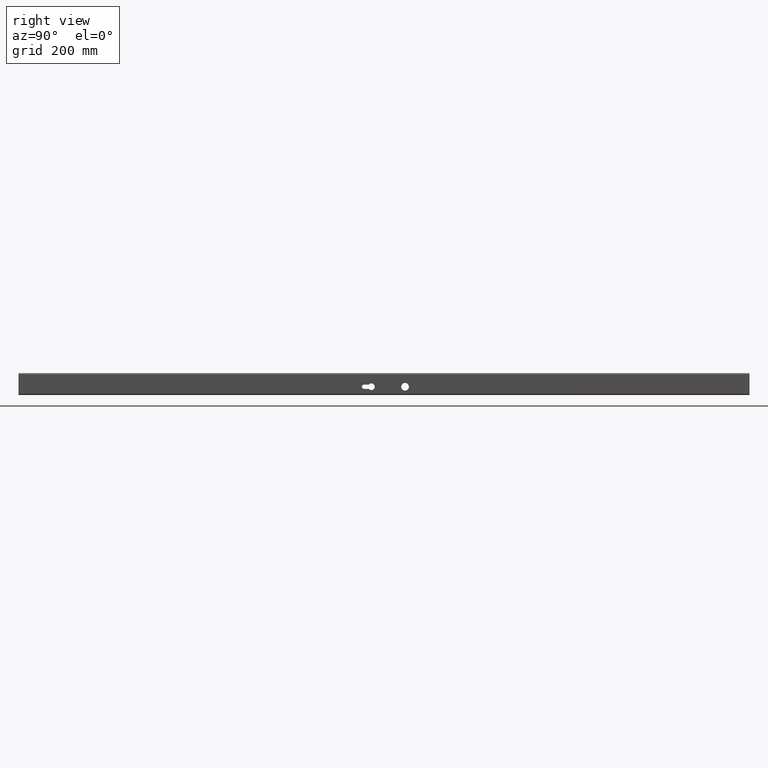
[diagram: clean part render]
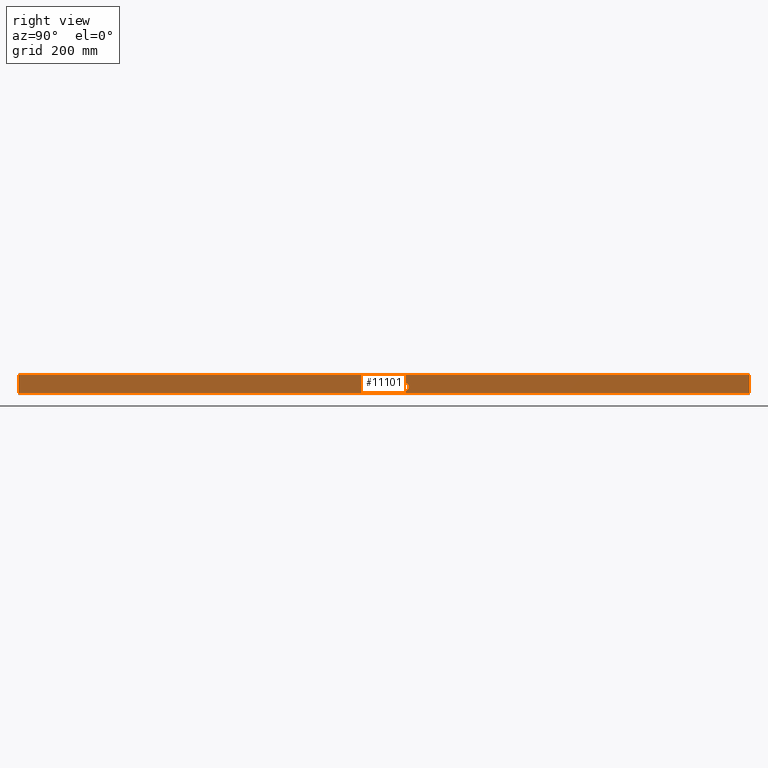
[diagram: same view with one face highlighted and labeled with its STEP entity id]
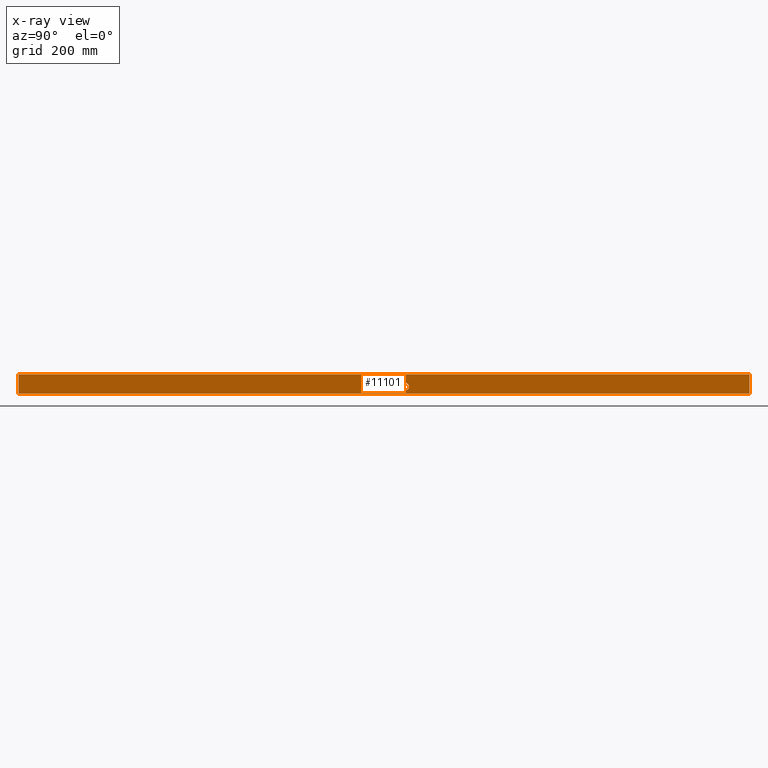
[diagram: x-ray of the same camera — body ghosted, the highlighted face saturated]
A machine part, right view. The second image highlights one B-rep face of the part: STEP entity #11101.
The next image is the same camera in x-ray: the body ghosted, the highlighted face saturated — about 0% of this face is hidden behind the body in this view.
In plain terms, the highlighted planar face has unit normal (-1, 0, 0).
Its self-contained STEP definition (entity closure, byte-faithful):
#6 = LINE ( 'NONE', #9020, #747 ) ;
#138 = VECTOR ( 'NONE', #11637, 1000.000000000000000 ) ;
#167 = DIRECTION ( 'NONE',  ( 0.000000000000000000, 0.000000000000000000, -1.000000000000000000 ) ) ;
#179 = EDGE_CURVE ( 'NONE', #10052, #3446, #6292, .T. ) ;
#203 = LINE ( 'NONE', #11400, #6989 ) ;
#247 = CARTESIAN_POINT ( 'NONE',  ( 20.00000000000000355, 57.50000000000022027, -18.00000000000001066 ) ) ;
#398 = DIRECTION ( 'NONE',  ( 0.000000000000000000, 0.000000000000000000, -1.000000000000000000 ) ) ;
#747 = VECTOR ( 'NONE', #2063, 1000.000000000000000 ) ;
#834 = EDGE_CURVE ( 'NONE', #8593, #7360, #8587, .T. ) ;
#923 = CIRCLE ( 'NONE', #10283, 10.50000000000000533 ) ;
#943 = FACE_BOUND ( 'NONE', #10748, .T. ) ;
#1015 = ORIENTED_EDGE ( 'NONE', *, *, #12037, .F. ) ;
#1125 = AXIS2_PLACEMENT_3D ( 'NONE', #4187, #2209, #6157 ) ;
#1422 = LINE ( 'NONE', #12088, #10358 ) ;
#1547 = AXIS2_PLACEMENT_3D ( 'NONE', #2814, #8870, #398 ) ;
#1650 = CARTESIAN_POINT ( 'NONE',  ( 19.99999999999999645, -54.69999999999997442, -13.15000000000000568 ) ) ;
#2063 = DIRECTION ( 'NONE',  ( -1.334402673828313339E-16, -0.000000000000000000, -1.000000000000000000 ) ) ;
#2209 = DIRECTION ( 'NONE',  ( -1.000000000000000000, 0.000000000000000000, 1.334402673828313339E-16 ) ) ;
#2701 = CARTESIAN_POINT ( 'NONE',  ( 20.00000000000000355, -54.69999999999978257, -1.850000000000001865 ) ) ;
#2814 = CARTESIAN_POINT ( 'NONE',  ( 20.00000000000000355, -54.69999999999978257, -7.500000000000003553 ) ) ;
#2940 = EDGE_CURVE ( 'NONE', #4424, #8593, #11446, .T. ) ;
#3446 = VERTEX_POINT ( 'NONE', #4669 ) ;
#3831 = VECTOR ( 'NONE', #10559, 1000.000000000000000 ) ;
#3958 = AXIS2_PLACEMENT_3D ( 'NONE', #5134, #7004, #8985 ) ;
#4018 = FACE_BOUND ( 'NONE', #4283, .T. ) ;
#4187 = CARTESIAN_POINT ( 'NONE',  ( 19.99999999999999645, 997.5000000000000000, -26.00000000000000355 ) ) ;
#4283 = EDGE_LOOP ( 'NONE', ( #8756, #9425, #8983, #12696 ) ) ;
#4424 = VERTEX_POINT ( 'NONE', #9755 ) ;
#4669 = CARTESIAN_POINT ( 'NONE',  ( 19.99999999999999645, -997.5000000000000000, -26.00000000000000355 ) ) ;
#4948 = CARTESIAN_POINT ( 'NONE',  ( 20.00000000000000355, -997.5000000000000000, 25.99999999999999645 ) ) ;
#5072 = PLANE ( 'NONE',  #1125 ) ;
#5134 = CARTESIAN_POINT ( 'NONE',  ( 20.00000000000000355, -34.49999999999977973, -7.500000000000003553 ) ) ;
#5419 = VERTEX_POINT ( 'NONE', #12376 ) ;
#5984 = VECTOR ( 'NONE', #8216, 1000.000000000000000 ) ;
#6157 = DIRECTION ( 'NONE',  ( 1.334402673828313339E-16, 0.000000000000000000, 1.000000000000000000 ) ) ;
#6197 = DIRECTION ( 'NONE',  ( -0.000000000000000000, -1.000000000000000000, -0.000000000000000000 ) ) ;
#6247 = ORIENTED_EDGE ( 'NONE', *, *, #12703, .T. ) ;
#6292 = LINE ( 'NONE', #7588, #138 ) ;
#6701 = EDGE_LOOP ( 'NONE', ( #6247, #9248, #9990, #7901 ) ) ;
#6989 = VECTOR ( 'NONE', #8409, 1000.000000000000000 ) ;
#7004 = DIRECTION ( 'NONE',  ( 1.000000000000000000, 0.000000000000000000, 0.000000000000000000 ) ) ;
#7234 = CARTESIAN_POINT ( 'NONE',  ( 20.00000000000000355, -41.69722168617840907, -13.15000000000000036 ) ) ;
#7334 = VERTEX_POINT ( 'NONE', #4948 ) ;
#7360 = VERTEX_POINT ( 'NONE', #7234 ) ;
#7412 = EDGE_CURVE ( 'NONE', #8604, #7334, #1422, .T. ) ;
#7530 = CARTESIAN_POINT ( 'NONE',  ( 20.00000000000000355, 997.5000000000000000, 25.99999999999999645 ) ) ;
#7588 = CARTESIAN_POINT ( 'NONE',  ( 19.99999999999999645, 997.5000000000000000, -26.00000000000000355 ) ) ;
#7879 = EDGE_CURVE ( 'NONE', #7360, #5419, #8692, .T. ) ;
#7901 = ORIENTED_EDGE ( 'NONE', *, *, #7412, .T. ) ;
#7964 = DIRECTION ( 'NONE',  ( 1.000000000000000000, 0.000000000000000000, 0.000000000000000000 ) ) ;
#8216 = DIRECTION ( 'NONE',  ( -0.000000000000000000, 1.000000000000000000, 2.668235101928752824E-16 ) ) ;
#8328 = LINE ( 'NONE', #2701, #3831 ) ;
#8409 = DIRECTION ( 'NONE',  ( -1.334402673828313339E-16, -0.000000000000000000, -1.000000000000000000 ) ) ;
#8487 = FACE_OUTER_BOUND ( 'NONE', #6701, .T. ) ;
#8587 = LINE ( 'NONE', #12130, #5984 ) ;
#8593 = VERTEX_POINT ( 'NONE', #1650 ) ;
#8604 = VERTEX_POINT ( 'NONE', #7530 ) ;
#8692 = CIRCLE ( 'NONE', #3958, 9.149999999999998579 ) ;
#8756 = ORIENTED_EDGE ( 'NONE', *, *, #834, .F. ) ;
#8870 = DIRECTION ( 'NONE',  ( 1.000000000000000000, 0.000000000000000000, 0.000000000000000000 ) ) ;
#8983 = ORIENTED_EDGE ( 'NONE', *, *, #11925, .F. ) ;
#8985 = DIRECTION ( 'NONE',  ( 0.000000000000000000, 0.000000000000000000, -1.000000000000000000 ) ) ;
#9020 = CARTESIAN_POINT ( 'NONE',  ( 19.99999999999999645, -997.5000000000000000, -26.00000000000000355 ) ) ;
#9248 = ORIENTED_EDGE ( 'NONE', *, *, #179, .F. ) ;
#9425 = ORIENTED_EDGE ( 'NONE', *, *, #2940, .F. ) ;
#9743 = EDGE_CURVE ( 'NONE', #8604, #10052, #203, .T. ) ;
#9755 = CARTESIAN_POINT ( 'NONE',  ( 20.00000000000000355, -54.69999999999978257, -1.850000000000001865 ) ) ;
#9937 = CARTESIAN_POINT ( 'NONE',  ( 20.00000000000000355, 57.50000000000022027, -7.500000000000003553 ) ) ;
#9990 = ORIENTED_EDGE ( 'NONE', *, *, #9743, .F. ) ;
#10052 = VERTEX_POINT ( 'NONE', #12209 ) ;
#10162 = VERTEX_POINT ( 'NONE', #247 ) ;
#10283 = AXIS2_PLACEMENT_3D ( 'NONE', #9937, #7964, #167 ) ;
#10358 = VECTOR ( 'NONE', #6197, 1000.000000000000000 ) ;
#10559 = DIRECTION ( 'NONE',  ( -0.000000000000000000, -1.000000000000000000, 6.670587754821882060E-17 ) ) ;
#10748 = EDGE_LOOP ( 'NONE', ( #1015 ) ) ;
#11101 = ADVANCED_FACE ( 'NONE', ( #4018, #943, #8487 ), #5072, .F. ) ;
#11400 = CARTESIAN_POINT ( 'NONE',  ( 19.99999999999999645, 997.5000000000000000, -26.00000000000000355 ) ) ;
#11446 = CIRCLE ( 'NONE', #1547, 5.650000000000002132 ) ;
#11637 = DIRECTION ( 'NONE',  ( -0.000000000000000000, -1.000000000000000000, -0.000000000000000000 ) ) ;
#11925 = EDGE_CURVE ( 'NONE', #5419, #4424, #8328, .T. ) ;
#12037 = EDGE_CURVE ( 'NONE', #10162, #10162, #923, .T. ) ;
#12088 = CARTESIAN_POINT ( 'NONE',  ( 20.00000000000000355, 997.5000000000000000, 25.99999999999999645 ) ) ;
#12130 = CARTESIAN_POINT ( 'NONE',  ( 20.00000000000000355, -41.69722168617840907, -13.15000000000000213 ) ) ;
#12209 = CARTESIAN_POINT ( 'NONE',  ( 19.99999999999999645, 997.5000000000000000, -26.00000000000000355 ) ) ;
#12376 = CARTESIAN_POINT ( 'NONE',  ( 20.00000000000000355, -41.69722168617840907, -1.850000000000002753 ) ) ;
#12696 = ORIENTED_EDGE ( 'NONE', *, *, #7879, .F. ) ;
#12703 = EDGE_CURVE ( 'NONE', #7334, #3446, #6, .T. ) ;